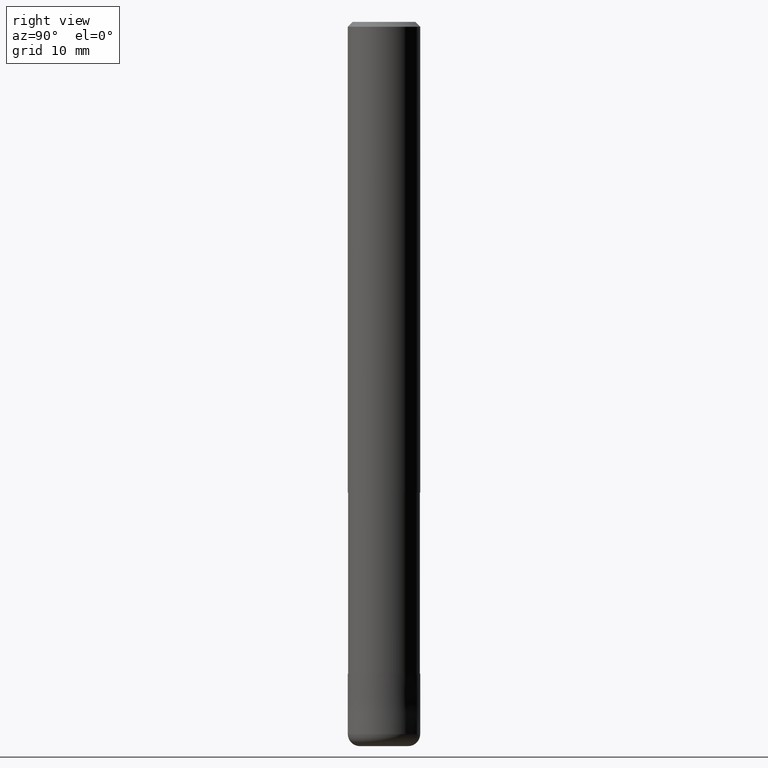
[diagram: clean part render]
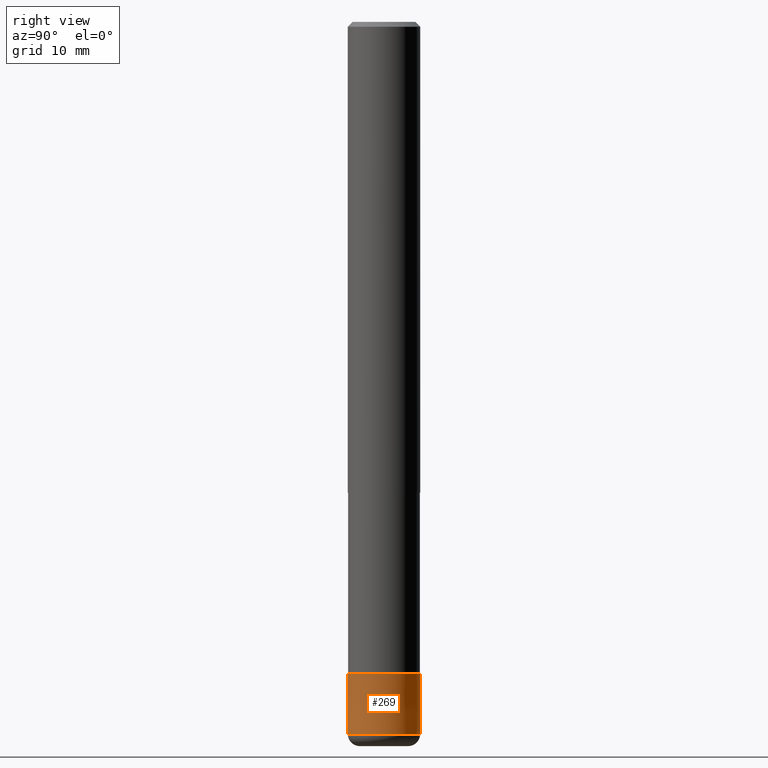
[diagram: same view with one face highlighted and labeled with its STEP entity id]
A machine part, right view. The second image highlights one B-rep face of the part: STEP entity #269.
In plain terms, the highlighted conical surface has half-angle 0.001 deg.
Its self-contained STEP definition (entity closure, byte-faithful):
#129=VERTEX_POINT('',#316);
#157=EDGE_CURVE('',#129,#239,#352,.T.);
#161=EDGE_CURVE('',#199,#273,#356,.T.);
#163=EDGE_CURVE('',#239,#273,#358,.T.);
#199=VERTEX_POINT('',#400);
#239=VERTEX_POINT('',#444);
#269=ADVANCED_FACE('',(#479),#480,.T.);
#273=VERTEX_POINT('',#484);
#275=EDGE_CURVE('',#199,#129,#486,.T.);
#316=CARTESIAN_POINT('',(0.0,3.0,-59.0));
#352=CIRCLE('',#567,3.0);
#356=CIRCLE('',#573,2.9999);
#358=LINE('',#576,#577);
#400=CARTESIAN_POINT('',(0.0,2.9999,-54.0));
#444=CARTESIAN_POINT('',(3.67381906146713E-016,-3.0,-59.0));
#479=FACE_OUTER_BOUND('',#726,.T.);
#480=CONICAL_SURFACE('',#727,2.99995,1.99999999973755E-005);
#484=CARTESIAN_POINT('',(3.67369660083175E-016,-2.9999,-54.0));
#486=LINE('',#734,#735);
#567=AXIS2_PLACEMENT_3D('',#805,#806,#807);
#573=AXIS2_PLACEMENT_3D('',#811,#812,#813);
#576=CARTESIAN_POINT('',(3.67375783114944E-016,-2.99995,-56.5));
#577=VECTOR('',#814,1.0);
#726=EDGE_LOOP('',(#981,#982,#983,#984));
#727=AXIS2_PLACEMENT_3D('',#985,#986,#987);
#734=CARTESIAN_POINT('',(-3.67375783114944E-016,2.99995,-56.5));
#735=VECTOR('',#988,1.0);
#805=CARTESIAN_POINT('',(0.0,0.0,-59.0));
#806=DIRECTION('',(0.0,0.0,-1.0));
#807=DIRECTION('',(0.0,1.0,0.0));
#811=CARTESIAN_POINT('',(0.0,0.0,-54.0));
#812=DIRECTION('',(0.0,0.0,-1.0));
#813=DIRECTION('',(0.0,1.0,0.0));
#814=DIRECTION('',(-2.44921270716008E-021,1.99999999960422E-005,0.9999999998));
#981=ORIENTED_EDGE('',*,*,#275,.F.);
#982=ORIENTED_EDGE('',*,*,#161,.T.);
#983=ORIENTED_EDGE('',*,*,#163,.F.);
#984=ORIENTED_EDGE('',*,*,#157,.F.);
#985=CARTESIAN_POINT('',(0.0,0.0,-56.5));
#986=DIRECTION('',(0.0,-0.0,-1.0));
#987=DIRECTION('',(0.0,1.0,0.0));
#988=DIRECTION('',(-2.44921270716008E-021,1.99999999960422E-005,-0.9999999998));